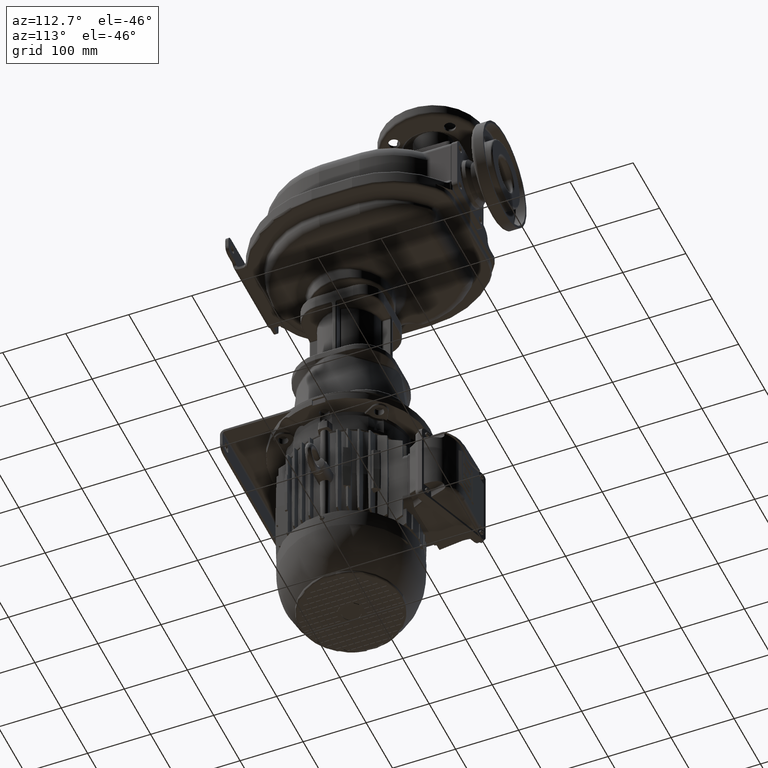
[diagram: clean part render]
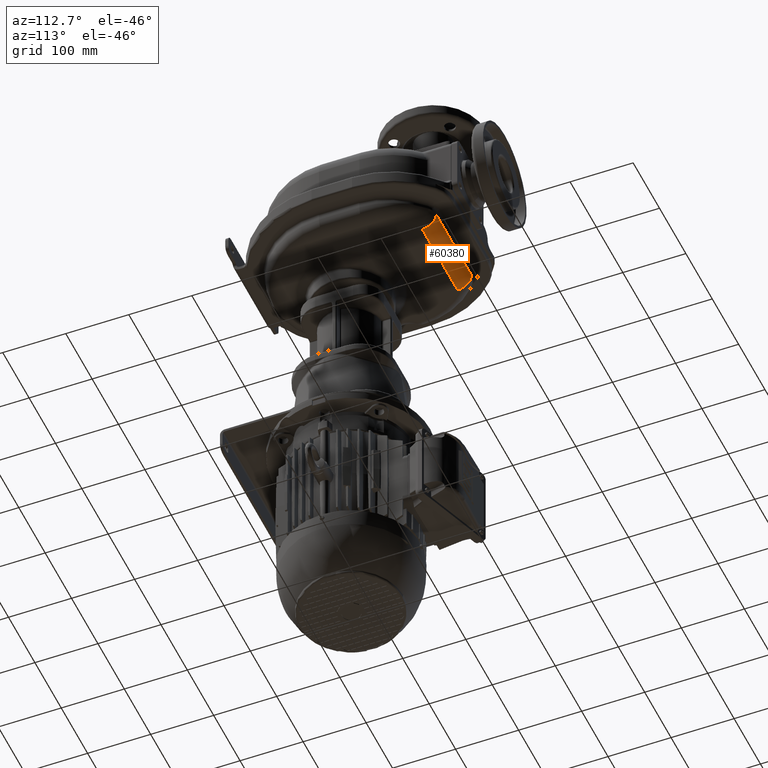
[diagram: same view with one face highlighted and labeled with its STEP entity id]
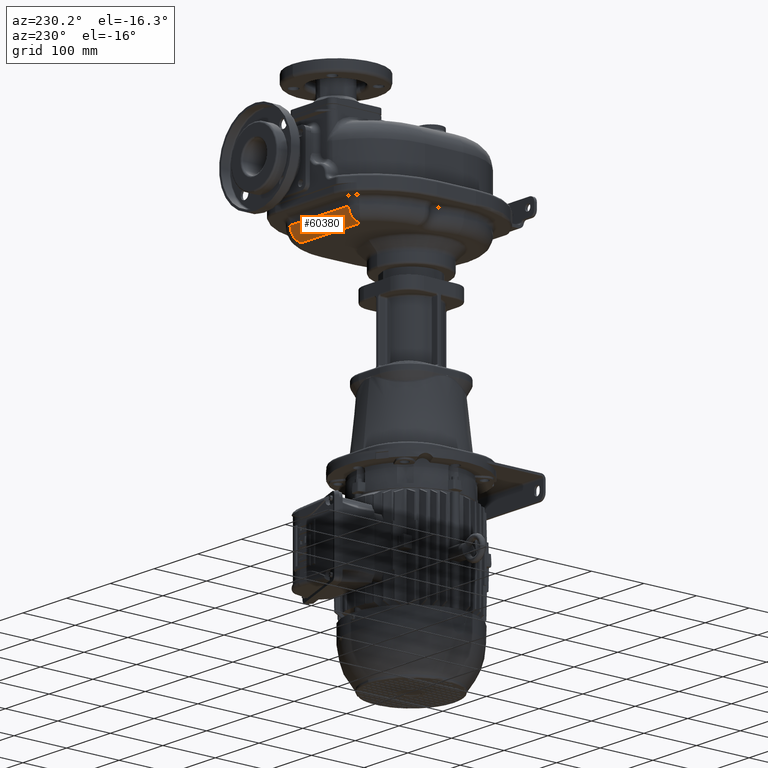
[diagram: same view with one face highlighted and labeled with its STEP entity id]
A machine part, auxiliary view. The second image highlights one B-rep face of the part: STEP entity #60380.
A second angle (auxiliary view) of the same face is appended — the face is thin or edge-on in the first view.
In plain terms, the highlighted cylindrical surface (edge-blend (fillet) strip) has radius 22 mm, axis along (1, 0, 0).
Its self-contained STEP definition (entity closure, byte-faithful):
#10615=DIRECTION('',(1.E0,0.E0,0.E0));
#10616=VECTOR('',#10615,1.337460279784E2);
#10617=CARTESIAN_POINT('',(-5.687301398920E1,3.05E2,-7.45E1));
#10618=LINE('',#10617,#10616);
#10826=CARTESIAN_POINT('',(-5.687301398920E1,3.05E2,-5.25E1));
#10827=DIRECTION('',(1.E0,0.E0,0.E0));
#10828=DIRECTION('',(0.E0,0.E0,-1.E0));
#10829=AXIS2_PLACEMENT_3D('',#10826,#10827,#10828);
#10831=CARTESIAN_POINT('',(7.687301398920E1,3.05E2,-5.25E1));
#10832=DIRECTION('',(1.E0,0.E0,0.E0));
#10833=DIRECTION('',(0.E0,0.E0,-1.E0));
#10834=AXIS2_PLACEMENT_3D('',#10831,#10832,#10833);
#16624=DIRECTION('',(1.E0,0.E0,0.E0));
#16625=VECTOR('',#16624,1.337460279784E2);
#16626=CARTESIAN_POINT('',(-5.687301398920E1,3.27E2,-5.25E1));
#16627=LINE('',#16626,#16625);
#39079=CARTESIAN_POINT('',(-5.687301398920E1,3.05E2,-7.45E1));
#39080=VERTEX_POINT('',#39079);
#39081=CARTESIAN_POINT('',(-5.687301398920E1,3.27E2,-5.25E1));
#39082=VERTEX_POINT('',#39081);
#39083=CARTESIAN_POINT('',(7.687301398920E1,3.05E2,-7.45E1));
#39084=VERTEX_POINT('',#39083);
#39085=CARTESIAN_POINT('',(7.687301398920E1,3.27E2,-5.25E1));
#39086=VERTEX_POINT('',#39085);
#60367=CARTESIAN_POINT('',(-5.688839078920E1,3.05E2,-5.25E1));
#60368=DIRECTION('',(1.E0,0.E0,0.E0));
#60369=DIRECTION('',(0.E0,0.E0,-1.E0));
#60370=AXIS2_PLACEMENT_3D('',#60367,#60368,#60369);
#60371=CYLINDRICAL_SURFACE('',#60370,2.2E1);
#60372=ORIENTED_EDGE('',*,*,#59973,.T.);
#60374=ORIENTED_EDGE('',*,*,#60373,.T.);
#60376=ORIENTED_EDGE('',*,*,#60375,.F.);
#60377=ORIENTED_EDGE('',*,*,#60360,.F.);
#60378=EDGE_LOOP('',(#60372,#60374,#60376,#60377));
#60379=FACE_OUTER_BOUND('',#60378,.F.);
#60380=ADVANCED_FACE('',(#60379),#60371,.T.);
#10830=CIRCLE('',#10829,2.2E1);
#10835=CIRCLE('',#10834,2.2E1);
#59973=EDGE_CURVE('',#39080,#39084,#10618,.T.);
#60360=EDGE_CURVE('',#39080,#39082,#10830,.T.);
#60373=EDGE_CURVE('',#39084,#39086,#10835,.T.);
#60375=EDGE_CURVE('',#39082,#39086,#16627,.T.);